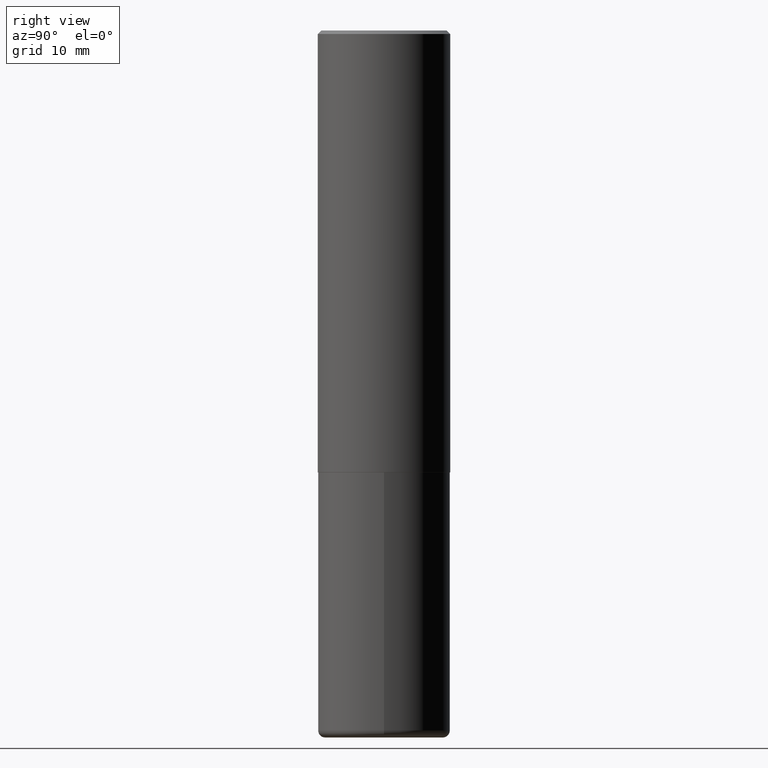
[diagram: clean part render]
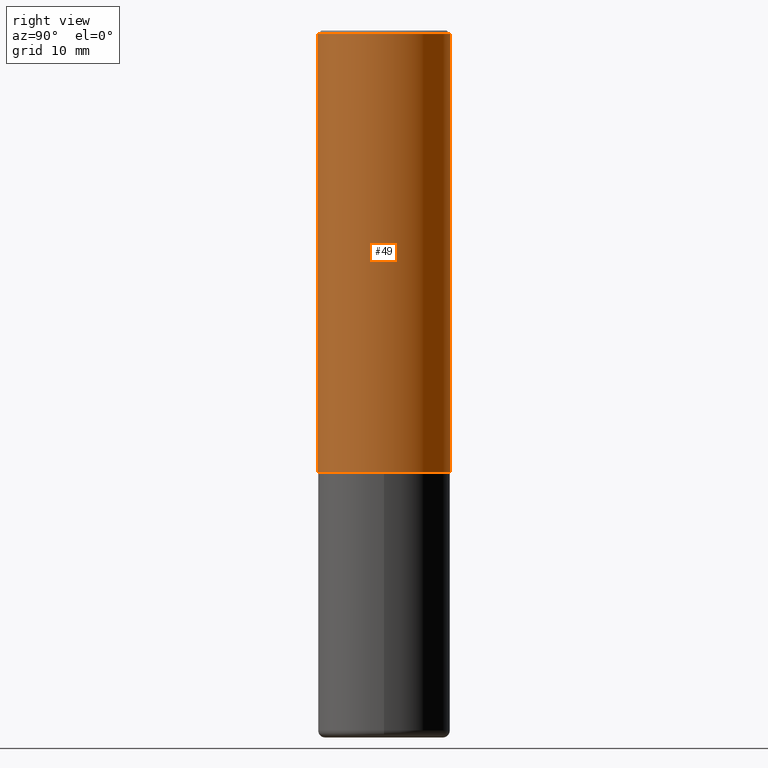
[diagram: same view with one face highlighted and labeled with its STEP entity id]
A machine part, right view. The second image highlights one B-rep face of the part: STEP entity #49.
In plain terms, the highlighted cylindrical surface (partial cylindrical patch) has radius 9.525 mm, axis along (-0, 0, 1).
Its self-contained STEP definition (entity closure, byte-faithful):
#5 = VERTEX_POINT ( 'NONE', #111 ) ;
#7 = DIRECTION ( 'NONE',  ( -2.445555710919848229E-29, 3.491356886316728133E-15, 1.000000000000000000 ) ) ;
#34 = EDGE_CURVE ( 'NONE', #5, #305, #366, .T. ) ;
#40 = VECTOR ( 'NONE', #211, 39.37007874015748143 ) ;
#44 = CARTESIAN_POINT ( 'NONE',  ( 2.618611004132350411E-15, 0.3749999999999999445, -0.02000000000000139513 ) ) ;
#45 = EDGE_LOOP ( 'NONE', ( #249, #355, #389, #340 ) ) ;
#46 = DIRECTION ( 'NONE',  ( -6.982962677686265922E-15, -1.000000000000000000, 3.494488891895536035E-15 ) ) ;
#49 = ADVANCED_FACE ( 'NONE', ( #178 ), #222, .T. ) ;
#77 = EDGE_CURVE ( 'NONE', #364, #245, #128, .T. ) ;
#80 = CARTESIAN_POINT ( 'NONE',  ( 2.664535259100376486E-15, 0.3750000000000001665, -1.309258832368773493E-15 ) ) ;
#111 = CARTESIAN_POINT ( 'NONE',  ( 2.664535259100408040E-15, 0.3749999999999915623, -2.499000000000001442 ) ) ;
#128 = LINE ( 'NONE', #257, #370 ) ;
#142 = CARTESIAN_POINT ( 'NONE',  ( -2.618611004132290852E-15, -0.3750000000000090483, -2.498999999999999222 ) ) ;
#164 = DIRECTION ( 'NONE',  ( -6.982962677686266711E-15, -1.000000000000000000, 2.913971193241878794E-15 ) ) ;
#170 = AXIS2_PLACEMENT_3D ( 'NONE', #330, #390, #46 ) ;
#176 = AXIS2_PLACEMENT_3D ( 'NONE', #359, #7, #164 ) ;
#178 = FACE_OUTER_BOUND ( 'NONE', #45, .T. ) ;
#211 = DIRECTION ( 'NONE',  ( -2.445555710919848229E-29, 3.491356886316728133E-15, 1.000000000000000000 ) ) ;
#222 = CYLINDRICAL_SURFACE ( 'NONE', #363, 0.3750000000000001665 ) ;
#227 = DIRECTION ( 'NONE',  ( -6.982962677686266711E-15, -1.000000000000000000, 3.491356886316727738E-15 ) ) ;
#228 = EDGE_CURVE ( 'NONE', #364, #5, #285, .T. ) ;
#233 = EDGE_CURVE ( 'NONE', #245, #305, #333, .T. ) ;
#245 = VERTEX_POINT ( 'NONE', #323 ) ;
#249 = ORIENTED_EDGE ( 'NONE', *, *, #228, .T. ) ;
#257 = CARTESIAN_POINT ( 'NONE',  ( -2.618611004132351200E-15, -0.3750000000000001665, 1.309258832368773493E-15 ) ) ;
#285 = CIRCLE ( 'NONE', #176, 0.3750000000000002776 ) ;
#305 = VERTEX_POINT ( 'NONE', #44 ) ;
#316 = DIRECTION ( 'NONE',  ( -2.445555710919848229E-29, 3.491356886316728133E-15, 1.000000000000000000 ) ) ;
#323 = CARTESIAN_POINT ( 'NONE',  ( -2.572686749164323547E-15, -0.3750000000000001110, -0.01999999999999877570 ) ) ;
#330 = CARTESIAN_POINT ( 'NONE',  ( 4.891111421839716706E-31, -6.982713772633485848E-17, -0.02000000000000008715 ) ) ;
#333 = CIRCLE ( 'NONE', #170, 0.3750000000000000555 ) ;
#340 = ORIENTED_EDGE ( 'NONE', *, *, #77, .F. ) ;
#355 = ORIENTED_EDGE ( 'NONE', *, *, #34, .T. ) ;
#359 = CARTESIAN_POINT ( 'NONE',  ( 6.111443721588701169E-29, -8.724900858905505270E-15, -2.499000000000000110 ) ) ;
#363 = AXIS2_PLACEMENT_3D ( 'NONE', #386, #418, #227 ) ;
#364 = VERTEX_POINT ( 'NONE', #142 ) ;
#366 = LINE ( 'NONE', #80, #40 ) ;
#370 = VECTOR ( 'NONE', #316, 39.37007874015748143 ) ;
#386 = CARTESIAN_POINT ( 'NONE',  ( 0.000000000000000000, 0.000000000000000000, 0.000000000000000000 ) ) ;
#389 = ORIENTED_EDGE ( 'NONE', *, *, #233, .F. ) ;
#390 = DIRECTION ( 'NONE',  ( -2.445555710919848229E-29, 3.491356886316728133E-15, 1.000000000000000000 ) ) ;
#418 = DIRECTION ( 'NONE',  ( -2.445555710919848229E-29, 3.491356886316728133E-15, 1.000000000000000000 ) ) ;